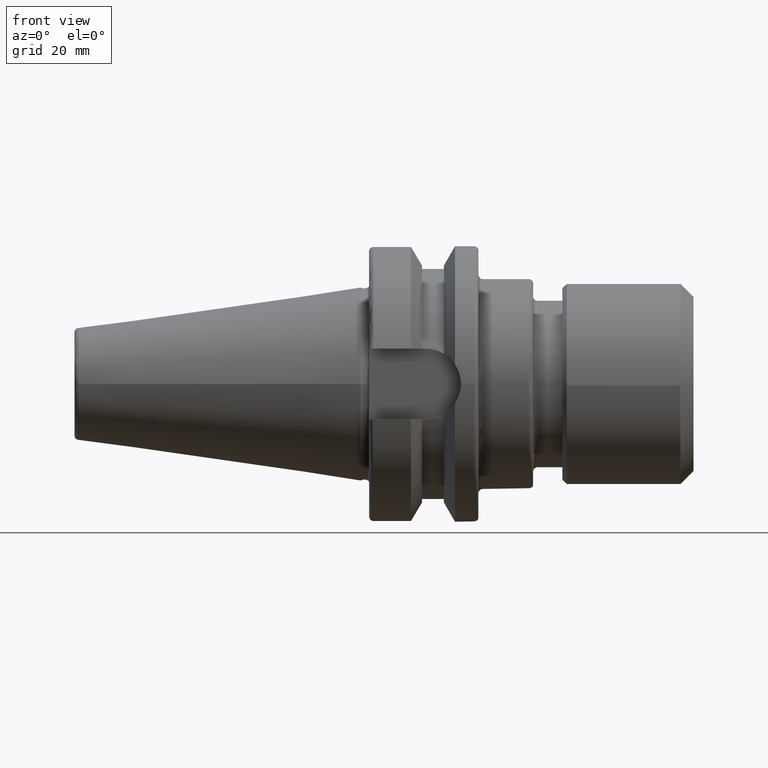
[diagram: clean part render]
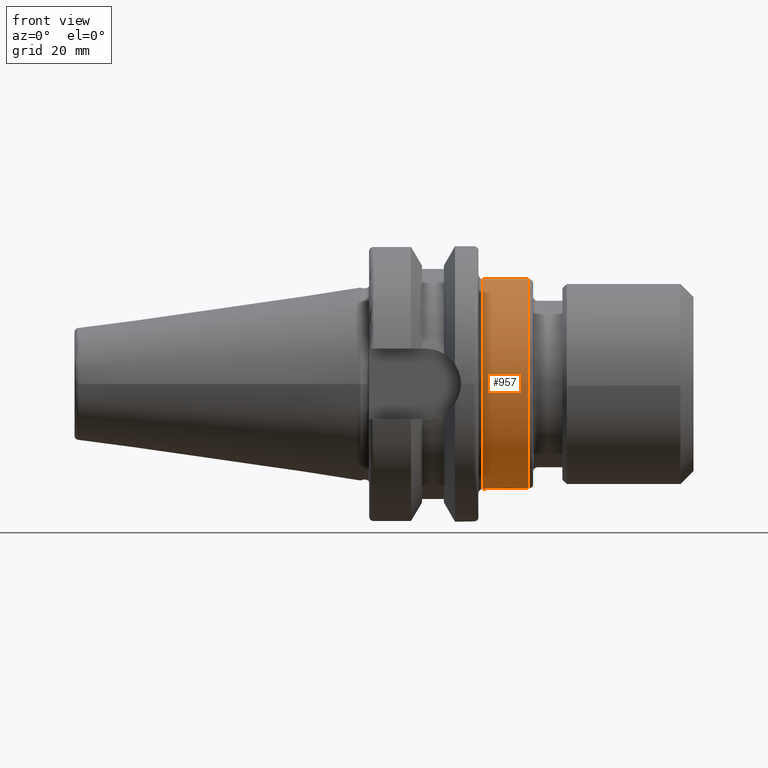
[diagram: same view with one face highlighted and labeled with its STEP entity id]
A machine part, front view. The second image highlights one B-rep face of the part: STEP entity #957.
In plain terms, the highlighted cylindrical surface (bore or boss wall) has radius 24 mm, axis along (1, 0, 0).
Its self-contained STEP definition (entity closure, byte-faithful):
#99=LINE('',#1571,#150);
#150=VECTOR('',#1247,24.);
#201=CYLINDRICAL_SURFACE('',#1097,24.);
#220=FACE_OUTER_BOUND('',#281,.T.);
#281=EDGE_LOOP('',(#666,#667,#668,#669,#670));
#352=CIRCLE('',#1093,24.);
#353=CIRCLE('',#1094,24.);
#356=CIRCLE('',#1098,24.);
#425=VERTEX_POINT('',#1561);
#426=VERTEX_POINT('',#1562);
#428=VERTEX_POINT('',#1569);
#518=EDGE_CURVE('',#425,#426,#352,.T.);
#519=EDGE_CURVE('',#426,#425,#353,.T.);
#522=EDGE_CURVE('',#428,#428,#356,.T.);
#523=EDGE_CURVE('',#428,#426,#99,.T.);
#666=ORIENTED_EDGE('',*,*,#522,.F.);
#667=ORIENTED_EDGE('',*,*,#523,.T.);
#668=ORIENTED_EDGE('',*,*,#518,.F.);
#669=ORIENTED_EDGE('',*,*,#519,.F.);
#670=ORIENTED_EDGE('',*,*,#523,.F.);
#957=ADVANCED_FACE('',(#220),#201,.T.);
#1093=AXIS2_PLACEMENT_3D('',#1563,#1235,#1236);
#1094=AXIS2_PLACEMENT_3D('',#1564,#1237,#1238);
#1097=AXIS2_PLACEMENT_3D('',#1568,#1243,#1244);
#1098=AXIS2_PLACEMENT_3D('',#1570,#1245,#1246);
#1235=DIRECTION('center_axis',(-1.,0.,0.));
#1236=DIRECTION('ref_axis',(0.,-1.22464679914735E-16,1.));
#1237=DIRECTION('center_axis',(-1.,0.,0.));
#1238=DIRECTION('ref_axis',(0.,-1.22464679914735E-16,1.));
#1243=DIRECTION('center_axis',(1.,0.,0.));
#1244=DIRECTION('ref_axis',(0.,0.,-1.));
#1245=DIRECTION('center_axis',(1.,0.,0.));
#1246=DIRECTION('ref_axis',(0.,1.22464679914735E-16,1.));
#1247=DIRECTION('',(-1.,0.,0.));
#1561=CARTESIAN_POINT('',(28.,0.,-24.));
#1562=CARTESIAN_POINT('',(28.,-2.93915231795365E-15,24.));
#1563=CARTESIAN_POINT('Origin',(28.,0.,0.));
#1564=CARTESIAN_POINT('Origin',(28.,0.,0.));
#1568=CARTESIAN_POINT('Origin',(33.25,0.,0.));
#1569=CARTESIAN_POINT('',(38.5,-2.93915231795365E-15,24.));
#1570=CARTESIAN_POINT('Origin',(38.5,0.,0.));
#1571=CARTESIAN_POINT('',(33.25,-2.93915231795365E-15,24.));